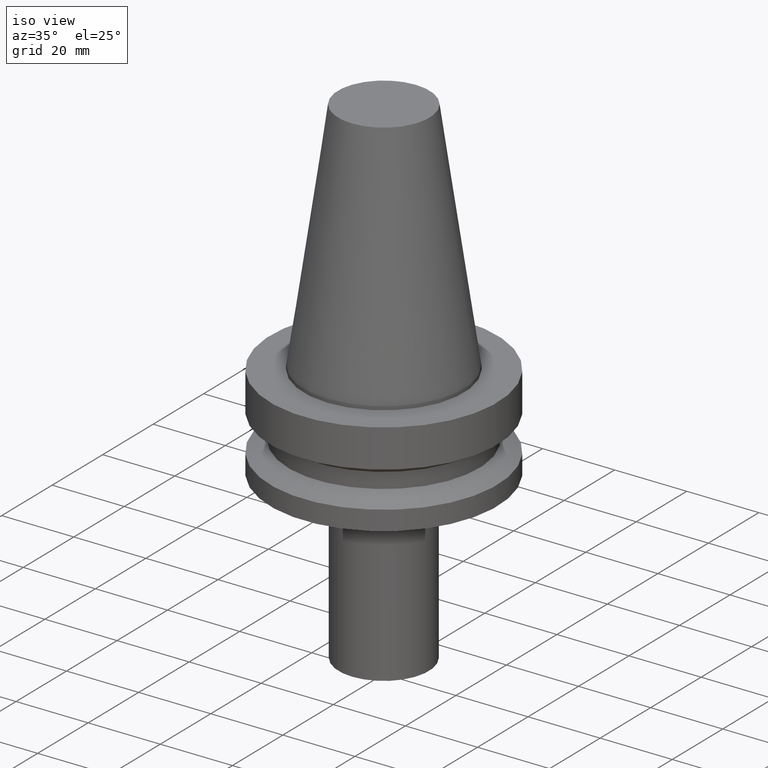
[diagram: clean part render]
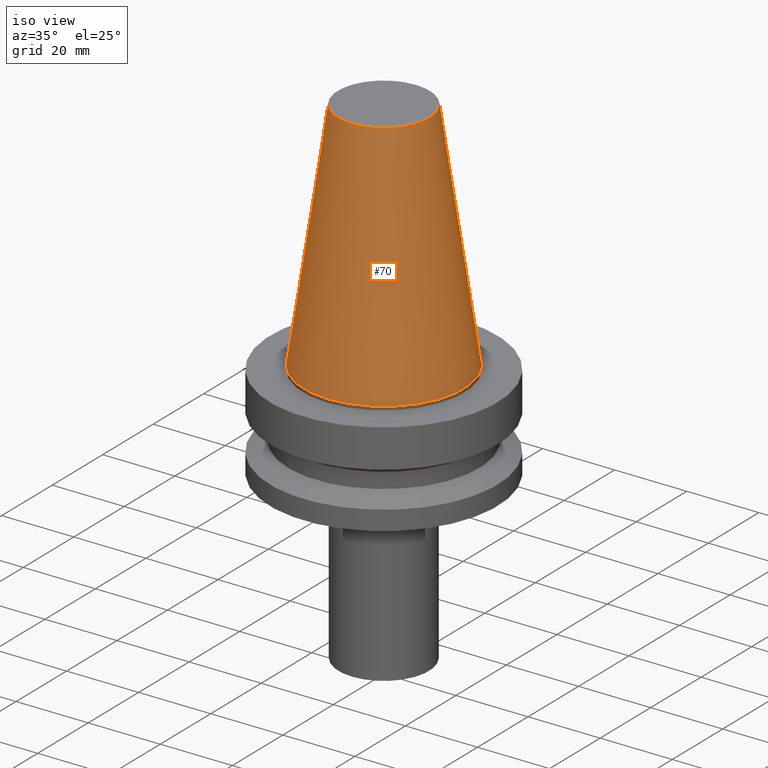
[diagram: same view with one face highlighted and labeled with its STEP entity id]
A machine part, iso view. The second image highlights one B-rep face of the part: STEP entity #70.
In plain terms, the highlighted conical surface has half-angle 8.297 deg.
Its self-contained STEP definition (entity closure, byte-faithful):
#59=EDGE_CURVE('Unnamed[1]',#150,#150,#151,.T.);
#70=ADVANCED_FACE('Unnamed[1]',(#167,#168),#169,.T.);
#113=EDGE_CURVE('Unnamed[1]',#233,#233,#234,.T.);
#150=VERTEX_POINT('',#270);
#151=CIRCLE('',#271,12.6875000000001);
#167=FACE_BOUND('',#291,.T.);
#168=FACE_BOUND('',#292,.T.);
#169=CONICAL_SURFACE('',#293,17.4562500000001,0.144812498238936);
#233=VERTEX_POINT('',#373);
#234=CIRCLE('',#374,22.225);
#270=CARTESIAN_POINT('',(-4.00459503321185E-015,12.6875000000002,65.4000000000001));
#271=AXIS2_PLACEMENT_3D('',#404,#405,#406);
#291=EDGE_LOOP('',(#423));
#292=EDGE_LOOP('',(#424));
#293=AXIS2_PLACEMENT_3D('',#425,#426,#427);
#373=CARTESIAN_POINT('',(1.71319921032766E-029,22.2250000000001,-2.8153873565375E-013));
#374=AXIS2_PLACEMENT_3D('',#496,#497,#498);
#404=CARTESIAN_POINT('',(-4.00459503321185E-015,7.66959703240923E-014,65.4000000000001));
#405=DIRECTION('',(6.12323399573677E-017,-4.72374929569225E-016,-1.0));
#406=DIRECTION('',(2.40974695439514E-032,1.0,-4.72374929569225E-016));
#423=ORIENTED_EDGE('',*,*,#113,.F.);
#424=ORIENTED_EDGE('',*,*,#59,.T.);
#425=CARTESIAN_POINT('',(-2.00229751660592E-015,6.12493101271785E-014,32.6999999999999));
#426=DIRECTION('',(6.12323399573677E-017,-4.72374929569225E-016,-1.0));
#427=DIRECTION('',(2.40974695439514E-032,1.0,-4.72374929569225E-016));
#496=CARTESIAN_POINT('',(1.65331138531142E-029,4.58026499302648E-014,-2.70006239588838E-013));
#497=DIRECTION('',(6.12323399573677E-017,-4.72374929569225E-016,-1.0));
#498=DIRECTION('',(2.40974695439514E-032,1.0,-4.72374929569225E-016));